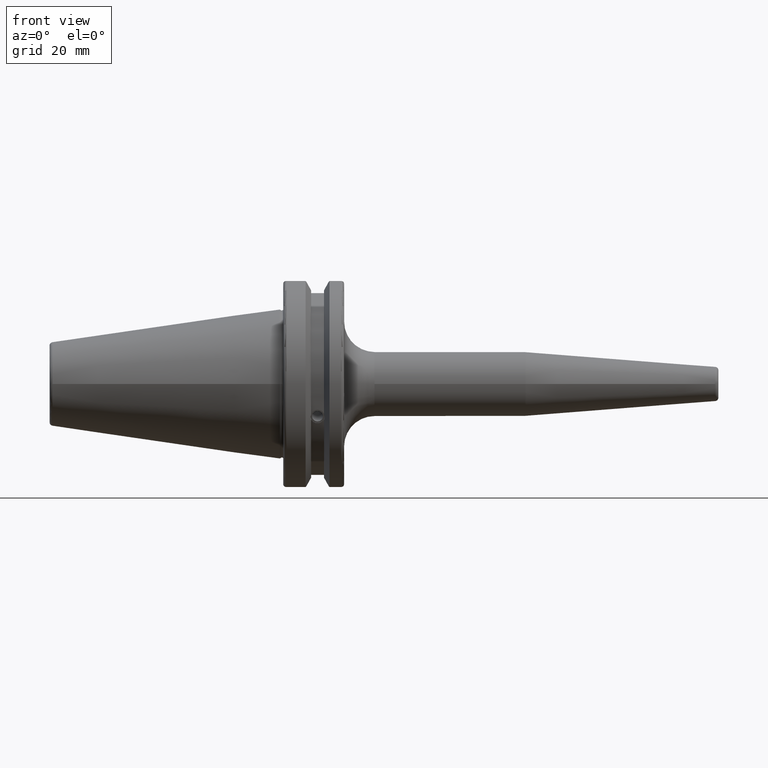
[diagram: clean part render]
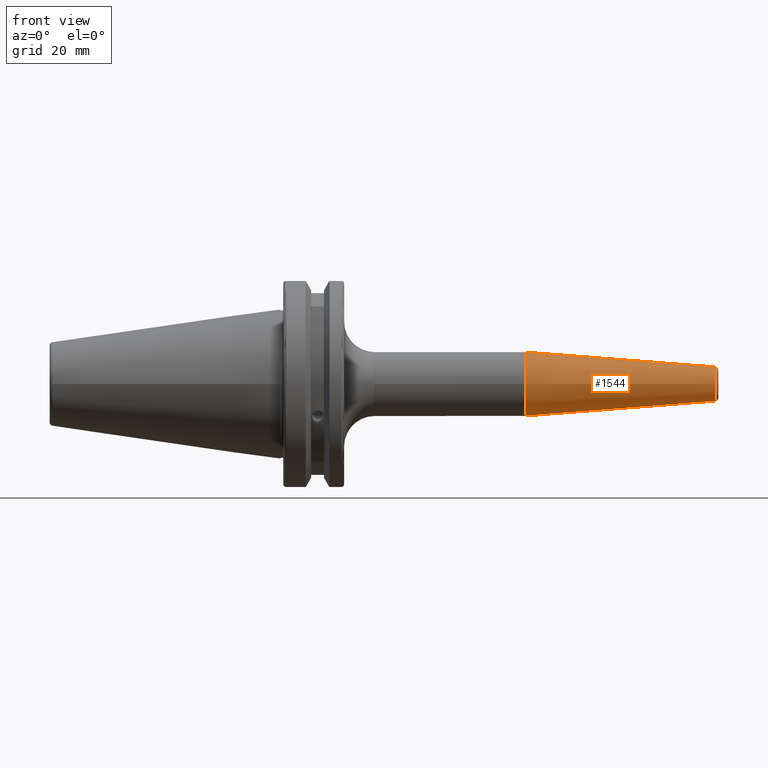
[diagram: same view with one face highlighted and labeled with its STEP entity id]
A machine part, front view. The second image highlights one B-rep face of the part: STEP entity #1544.
In plain terms, the highlighted conical surface has half-angle 4.5 deg.
Its self-contained STEP definition (entity closure, byte-faithful):
#84=CONICAL_SURFACE('',#1666,7.25000000000002,0.0785398163397453);
#101=LINE('',#2335,#199);
#199=VECTOR('',#1870,7.25000000000002);
#379=FACE_OUTER_BOUND('',#470,.T.);
#470=EDGE_LOOP('',(#1064,#1065,#1066,#1067,#1068));
#576=CIRCLE('',#1664,5.07252684207495);
#577=CIRCLE('',#1665,5.07252684207495);
#578=CIRCLE('',#1667,9.5);
#652=VERTEX_POINT('',#2328);
#653=VERTEX_POINT('',#2330);
#654=VERTEX_POINT('',#2334);
#813=EDGE_CURVE('',#652,#653,#576,.T.);
#814=EDGE_CURVE('',#653,#652,#577,.T.);
#815=EDGE_CURVE('',#653,#654,#101,.T.);
#816=EDGE_CURVE('',#654,#654,#578,.T.);
#1064=ORIENTED_EDGE('',*,*,#814,.F.);
#1065=ORIENTED_EDGE('',*,*,#815,.T.);
#1066=ORIENTED_EDGE('',*,*,#816,.T.);
#1067=ORIENTED_EDGE('',*,*,#815,.F.);
#1068=ORIENTED_EDGE('',*,*,#813,.F.);
#1544=ADVANCED_FACE('',(#379),#84,.T.);
#1664=AXIS2_PLACEMENT_3D('',#2331,#1864,#1865);
#1665=AXIS2_PLACEMENT_3D('',#2332,#1866,#1867);
#1666=AXIS2_PLACEMENT_3D('',#2333,#1868,#1869);
#1667=AXIS2_PLACEMENT_3D('',#2336,#1871,#1872);
#1864=DIRECTION('center_axis',(1.,0.,0.));
#1865=DIRECTION('ref_axis',(0.,-1.,3.06161699786838E-17));
#1866=DIRECTION('center_axis',(1.,0.,0.));
#1867=DIRECTION('ref_axis',(0.,-1.,3.06161699786838E-17));
#1868=DIRECTION('center_axis',(-1.,0.,0.));
#1869=DIRECTION('ref_axis',(0.,1.,0.));
#1870=DIRECTION('',(-0.996917333733128,-0.0784590957278454,-9.60846804471016E-18));
#1871=DIRECTION('center_axis',(1.,0.,0.));
#1872=DIRECTION('ref_axis',(0.,0.,-1.));
#2328=CARTESIAN_POINT('',(129.078459095728,-6.21205376073612E-16,5.07252684207495));
#2330=CARTESIAN_POINT('',(129.078459095728,-5.07252684207495,-6.21205376073612E-16));
#2331=CARTESIAN_POINT('Origin',(129.078459095728,0.,-7.76506720092016E-16));
#2332=CARTESIAN_POINT('Origin',(129.078459095728,0.,-7.76506720092016E-16));
#2333=CARTESIAN_POINT('Origin',(101.411039343607,0.,0.));
#2334=CARTESIAN_POINT('',(72.8220786872146,-9.5,-1.16341445918999E-15));
#2335=CARTESIAN_POINT('',(101.411039343607,-7.25000000000002,-8.87868929381833E-16));
#2336=CARTESIAN_POINT('Origin',(72.8220786872146,0.,0.));